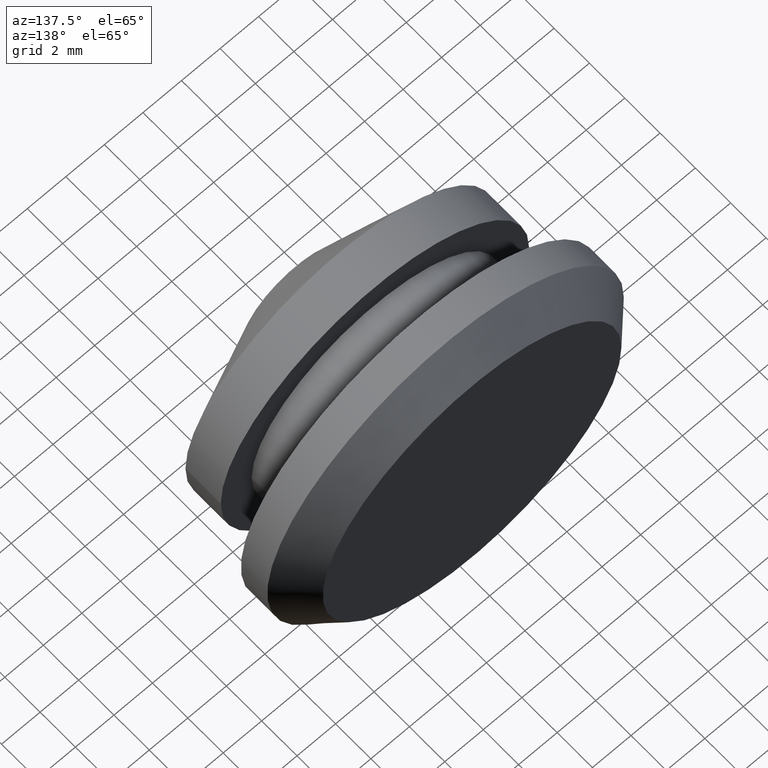
[diagram: clean part render]
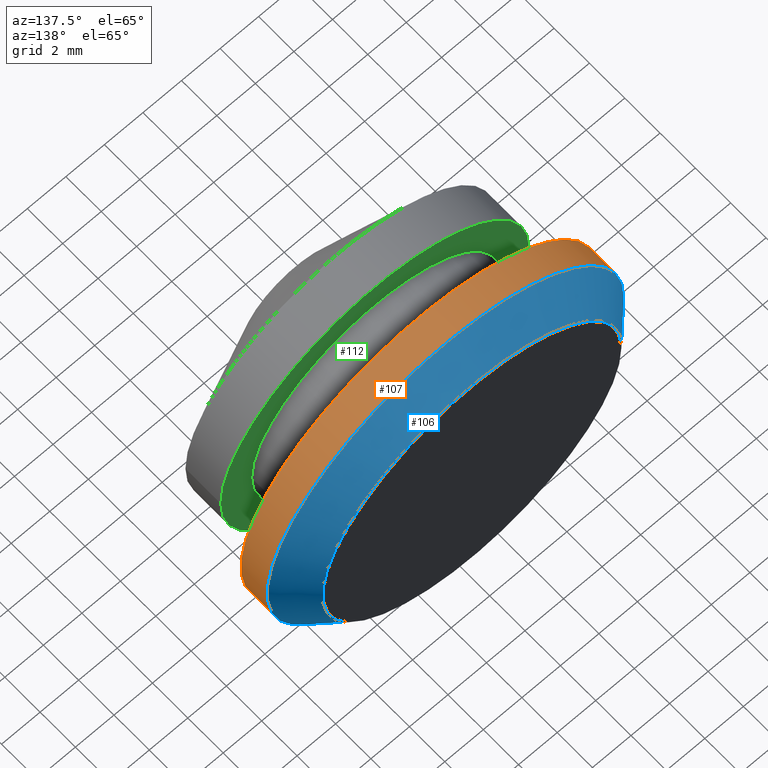
[diagram: same view with three faces highlighted in distinct colors, each labeled with its STEP entity id]
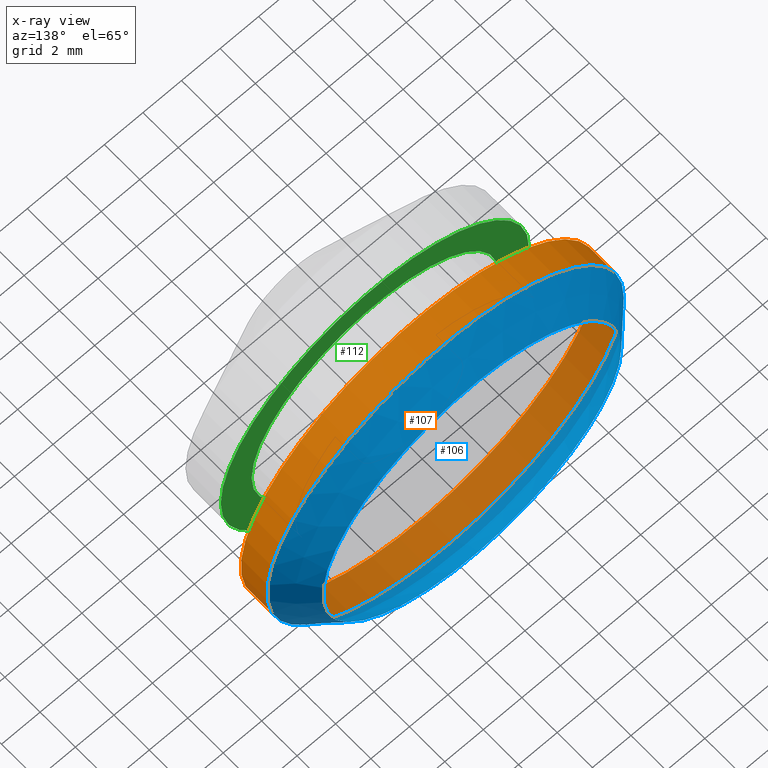
[diagram: x-ray of the same camera — body ghosted, the three highlighted faces saturated]
A machine part, auxiliary view with three faces highlighted in distinct colors.
The next image is the same camera in x-ray (body ghosted, the three faces saturated) — at least one of them is partly hidden behind the body in this view.
Their STEP definitions:

[orange] entity #107 — the highlighted cylindrical surface (bore or boss wall) has radius 9.25 mm, axis along (0, 1, 0).
#19=CYLINDRICAL_SURFACE('',#121,9.25);
#24=FACE_BOUND('',#44,.T.);
#32=FACE_OUTER_BOUND('',#43,.T.);
#43=EDGE_LOOP('',(#88));
#44=EDGE_LOOP('',(#89));
#59=CIRCLE('',#119,9.25);
#61=CIRCLE('',#122,9.25);
#68=VERTEX_POINT('',#179);
#70=VERTEX_POINT('',#184);
#77=EDGE_CURVE('',#68,#68,#59,.T.);
#79=EDGE_CURVE('',#70,#70,#61,.T.);
#88=ORIENTED_EDGE('',*,*,#79,.F.);
#89=ORIENTED_EDGE('',*,*,#77,.F.);
#107=ADVANCED_FACE('',(#32,#24),#19,.T.);
#119=AXIS2_PLACEMENT_3D('',#180,#141,#142);
#121=AXIS2_PLACEMENT_3D('',#183,#145,#146);
#122=AXIS2_PLACEMENT_3D('',#185,#147,#148);
#141=DIRECTION('center_axis',(0.,1.,0.));
#142=DIRECTION('ref_axis',(1.,0.,0.));
#145=DIRECTION('center_axis',(0.,1.,0.));
#146=DIRECTION('ref_axis',(1.,0.,0.));
#147=DIRECTION('center_axis',(0.,-1.,0.));
#148=DIRECTION('ref_axis',(1.,0.,0.));
#179=CARTESIAN_POINT('',(-9.25,1.5,1.1327982892113E-15));
#180=CARTESIAN_POINT('Origin',(0.,1.5,0.));
#183=CARTESIAN_POINT('Origin',(0.,0.,0.));
#184=CARTESIAN_POINT('',(-9.25,0.,1.1327982892113E-15));
#185=CARTESIAN_POINT('Origin',(0.,0.,0.));

[blue] entity #106 — the highlighted conical surface has half-angle 45 deg.
#23=FACE_BOUND('',#42,.T.);
#31=FACE_OUTER_BOUND('',#41,.T.);
#41=EDGE_LOOP('',(#86));
#42=EDGE_LOOP('',(#87));
#59=CIRCLE('',#119,9.25);
#60=CIRCLE('',#120,7.75);
#68=VERTEX_POINT('',#179);
#69=VERTEX_POINT('',#181);
#77=EDGE_CURVE('',#68,#68,#59,.T.);
#78=EDGE_CURVE('',#69,#69,#60,.T.);
#86=ORIENTED_EDGE('',*,*,#77,.T.);
#87=ORIENTED_EDGE('',*,*,#78,.T.);
#104=CONICAL_SURFACE('',#118,8.5,45.);
#106=ADVANCED_FACE('',(#31,#23),#104,.T.);
#118=AXIS2_PLACEMENT_3D('',#178,#139,#140);
#119=AXIS2_PLACEMENT_3D('',#180,#141,#142);
#120=AXIS2_PLACEMENT_3D('',#182,#143,#144);
#139=DIRECTION('center_axis',(0.,-1.,0.));
#140=DIRECTION('ref_axis',(1.,0.,0.));
#141=DIRECTION('center_axis',(0.,1.,0.));
#142=DIRECTION('ref_axis',(1.,0.,0.));
#143=DIRECTION('center_axis',(0.,-1.,0.));
#144=DIRECTION('ref_axis',(1.,0.,0.));
#178=CARTESIAN_POINT('Origin',(0.,2.25,0.));
#179=CARTESIAN_POINT('',(-9.25,1.5,1.1327982892113E-15));
#180=CARTESIAN_POINT('Origin',(0.,1.5,0.));
#181=CARTESIAN_POINT('',(-7.75,3.,-9.49101269339199E-16));
#182=CARTESIAN_POINT('Origin',(0.,3.,0.));

[green] entity #112 — the highlighted planar face has unit normal (0, 1, 0).
#17=PLANE('',#130);
#27=FACE_BOUND('',#52,.T.);
#37=FACE_OUTER_BOUND('',#51,.T.);
#51=EDGE_LOOP('',(#96));
#52=EDGE_LOOP('',(#97));
#65=CIRCLE('',#131,8.);
#66=CIRCLE('',#132,6.4);
#74=VERTEX_POINT('',#197);
#75=VERTEX_POINT('',#199);
#83=EDGE_CURVE('',#74,#74,#65,.T.);
#84=EDGE_CURVE('',#75,#75,#66,.T.);
#96=ORIENTED_EDGE('',*,*,#83,.T.);
#97=ORIENTED_EDGE('',*,*,#84,.T.);
#112=ADVANCED_FACE('',(#37,#27),#17,.T.);
#130=AXIS2_PLACEMENT_3D('',#196,#163,#164);
#131=AXIS2_PLACEMENT_3D('',#198,#165,#166);
#132=AXIS2_PLACEMENT_3D('',#200,#167,#168);
#163=DIRECTION('center_axis',(0.,1.,0.));
#164=DIRECTION('ref_axis',(0.,0.,1.));
#165=DIRECTION('center_axis',(0.,1.,0.));
#166=DIRECTION('ref_axis',(-1.,0.,0.));
#167=DIRECTION('center_axis',(0.,-1.,0.));
#168=DIRECTION('ref_axis',(-1.,0.,0.));
#196=CARTESIAN_POINT('Origin',(-5.44236046870305E-16,-2.5,0.));
#197=CARTESIAN_POINT('',(8.,-2.5,9.79717439317883E-16));
#198=CARTESIAN_POINT('Origin',(0.,-2.5,0.));
#199=CARTESIAN_POINT('',(6.4,-2.5,7.83773951454306E-16));
#200=CARTESIAN_POINT('Origin',(0.,-2.5,0.));